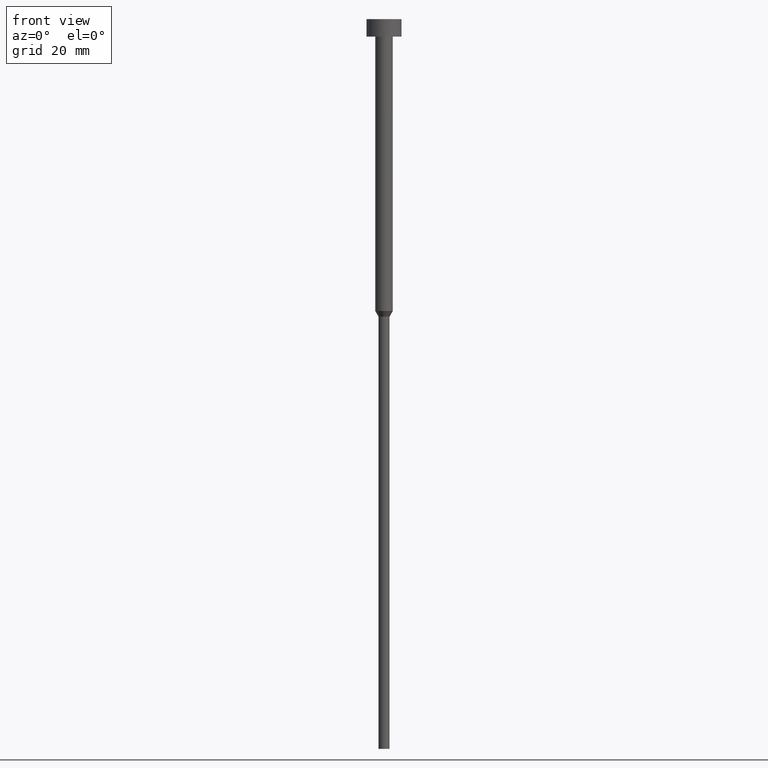
[diagram: clean part render]
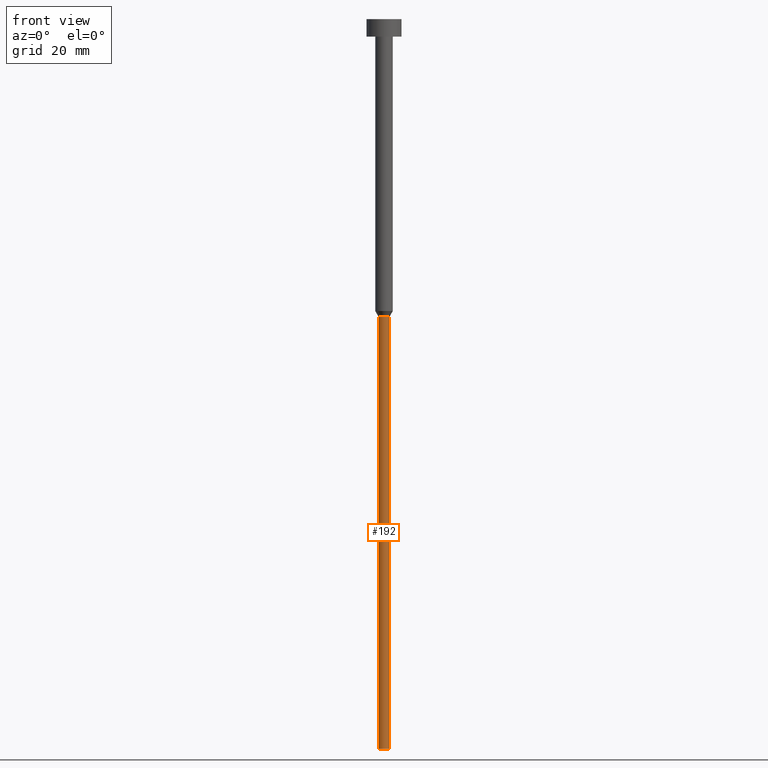
[diagram: same view with one face highlighted and labeled with its STEP entity id]
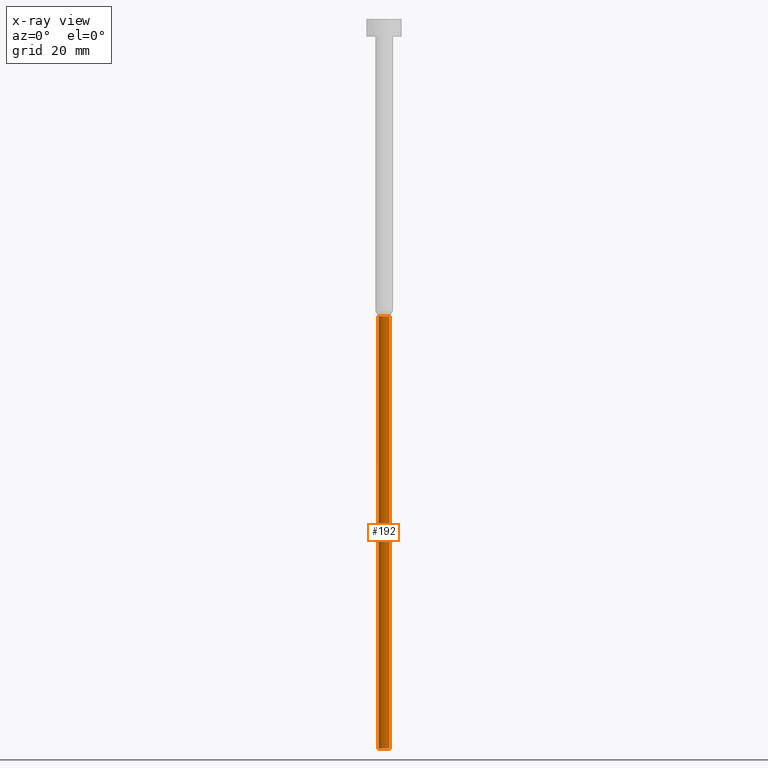
[diagram: x-ray of the same camera — body ghosted, the highlighted face saturated]
A machine part, front view. The second image highlights one B-rep face of the part: STEP entity #192.
The next image is the same camera in x-ray: the body ghosted, the highlighted face saturated — about 0% of this face is hidden behind the body in this view.
In plain terms, the highlighted cylindrical surface (edge-blend (fillet) strip) has radius 0.95 mm, axis along (-0, -0, 1).
Its self-contained STEP definition (entity closure, byte-faithful):
#4 = AXIS2_PLACEMENT_3D ( 'NONE', #69, #143, #247 ) ;
#10 = VERTEX_POINT ( 'NONE', #78 ) ;
#12 = EDGE_CURVE ( 'NONE', #10, #193, #319, .T. ) ;
#19 = EDGE_CURVE ( 'NONE', #193, #343, #46, .T. ) ;
#21 = CARTESIAN_POINT ( 'NONE',  ( 0.000000000000000000, 0.000000000000000000, 0.000000000000000000 ) ) ;
#40 = EDGE_LOOP ( 'NONE', ( #173, #130, #158, #109 ) ) ;
#46 = LINE ( 'NONE', #349, #216 ) ;
#56 = DIRECTION ( 'NONE',  ( -0.000000000000000000, -0.000000000000000000, 1.000000000000000000 ) ) ;
#69 = CARTESIAN_POINT ( 'NONE',  ( 0.000000000000000000, 0.000000000000000000, -125.0000000000000000 ) ) ;
#78 = CARTESIAN_POINT ( 'NONE',  ( -0.9499999999999998446, 1.163414459189985682E-16, -125.0000000000000000 ) ) ;
#86 = FACE_OUTER_BOUND ( 'NONE', #40, .T. ) ;
#89 = LINE ( 'NONE', #305, #220 ) ;
#109 = ORIENTED_EDGE ( 'NONE', *, *, #203, .F. ) ;
#111 = AXIS2_PLACEMENT_3D ( 'NONE', #256, #56, #208 ) ;
#123 = CARTESIAN_POINT ( 'NONE',  ( 0.9500000000000000666, 0.000000000000000000, -50.95262794416287733 ) ) ;
#130 = ORIENTED_EDGE ( 'NONE', *, *, #12, .T. ) ;
#143 = DIRECTION ( 'NONE',  ( -0.000000000000000000, -0.000000000000000000, 1.000000000000000000 ) ) ;
#147 = DIRECTION ( 'NONE',  ( -0.000000000000000000, -0.000000000000000000, 1.000000000000000000 ) ) ;
#149 = EDGE_CURVE ( 'NONE', #10, #188, #89, .T. ) ;
#151 = CARTESIAN_POINT ( 'NONE',  ( 0.9499999999999998446, 0.000000000000000000, -125.0000000000000000 ) ) ;
#158 = ORIENTED_EDGE ( 'NONE', *, *, #19, .T. ) ;
#173 = ORIENTED_EDGE ( 'NONE', *, *, #149, .F. ) ;
#179 = DIRECTION ( 'NONE',  ( -0.000000000000000000, -0.000000000000000000, 1.000000000000000000 ) ) ;
#188 = VERTEX_POINT ( 'NONE', #328 ) ;
#192 = ADVANCED_FACE ( 'NONE', ( #86 ), #303, .T. ) ;
#193 = VERTEX_POINT ( 'NONE', #151 ) ;
#199 = DIRECTION ( 'NONE',  ( 1.000000000000000000, 0.000000000000000000, 0.000000000000000000 ) ) ;
#203 = EDGE_CURVE ( 'NONE', #188, #343, #280, .T. ) ;
#208 = DIRECTION ( 'NONE',  ( 1.000000000000000000, 0.000000000000000000, 0.000000000000000000 ) ) ;
#216 = VECTOR ( 'NONE', #290, 1000.000000000000000 ) ;
#220 = VECTOR ( 'NONE', #179, 1000.000000000000000 ) ;
#247 = DIRECTION ( 'NONE',  ( 1.000000000000000000, 0.000000000000000000, 0.000000000000000000 ) ) ;
#256 = CARTESIAN_POINT ( 'NONE',  ( 0.000000000000000000, 0.000000000000000000, -50.95262794416287733 ) ) ;
#280 = CIRCLE ( 'NONE', #111, 0.9500000000000000666 ) ;
#290 = DIRECTION ( 'NONE',  ( -0.000000000000000000, -0.000000000000000000, 1.000000000000000000 ) ) ;
#303 = CYLINDRICAL_SURFACE ( 'NONE', #336, 0.9499999999999999556 ) ;
#305 = CARTESIAN_POINT ( 'NONE',  ( -0.9499999999999999556, 1.163414459189985682E-16, 0.000000000000000000 ) ) ;
#319 = CIRCLE ( 'NONE', #4, 0.9499999999999998446 ) ;
#328 = CARTESIAN_POINT ( 'NONE',  ( -0.9500000000000001776, 1.163414459189985929E-16, -50.95262794416287733 ) ) ;
#336 = AXIS2_PLACEMENT_3D ( 'NONE', #21, #147, #199 ) ;
#343 = VERTEX_POINT ( 'NONE', #123 ) ;
#349 = CARTESIAN_POINT ( 'NONE',  ( 0.9499999999999999556, 0.000000000000000000, 0.000000000000000000 ) ) ;